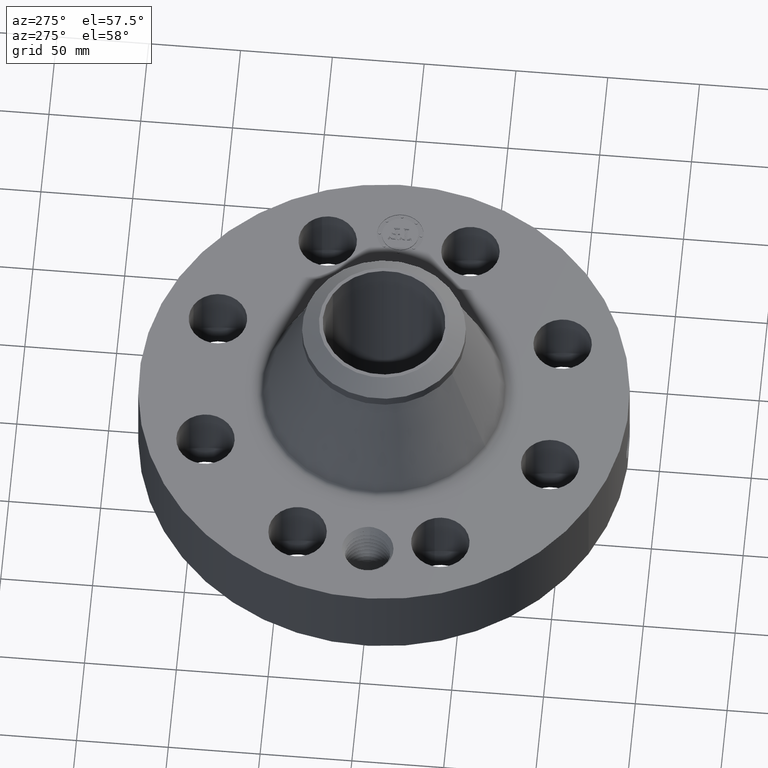
[diagram: clean part render]
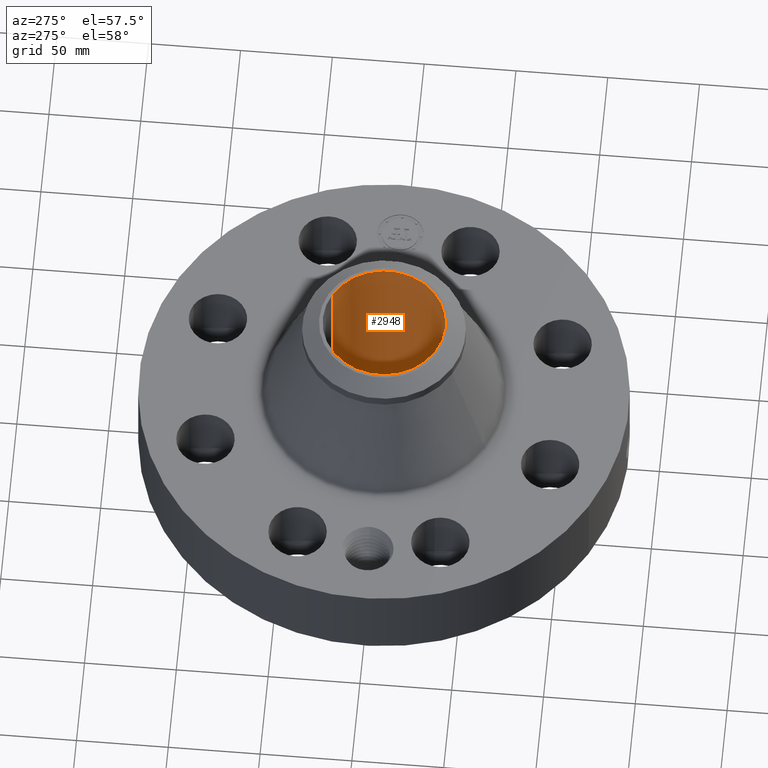
[diagram: same view with one face highlighted and labeled with its STEP entity id]
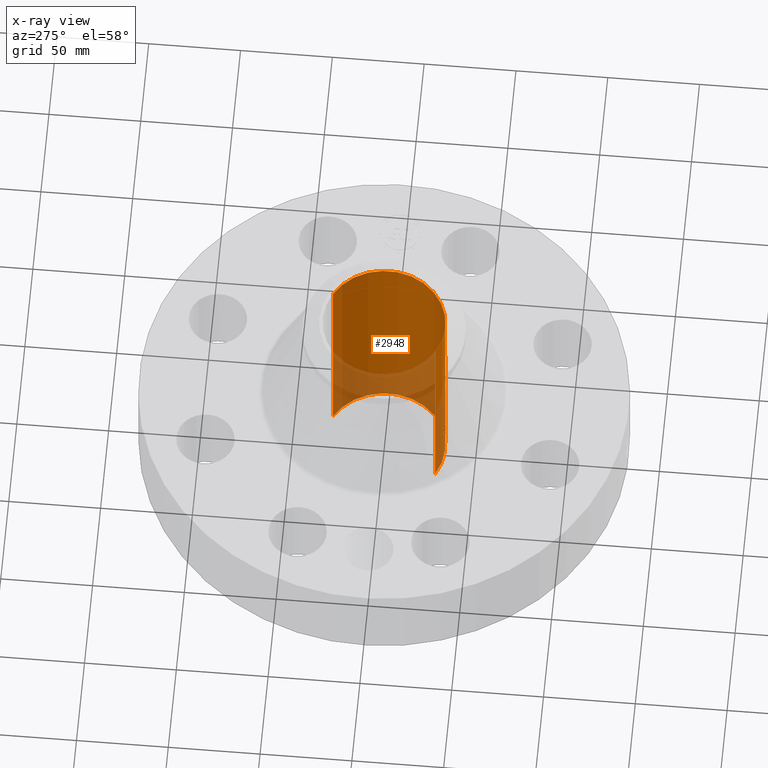
[diagram: x-ray of the same camera — body ghosted, the highlighted face saturated]
A machine part, auxiliary view. The second image highlights one B-rep face of the part: STEP entity #2948.
The next image is the same camera in x-ray: the body ghosted, the highlighted face saturated — about 29% of this face is hidden behind the body in this view.
In plain terms, the highlighted cylindrical surface (partial cylindrical patch) has radius 33.3248 mm, axis along (0, 0, -1).
Its self-contained STEP definition (entity closure, byte-faithful):
#2161=AXIS2_PLACEMENT_3D('Circle Axis2P3D',#2159,#2160,$) ;
#2879=AXIS2_PLACEMENT_3D('Cylinder Axis2P3D',#2876,#2877,#2878) ;
#2883=AXIS2_PLACEMENT_3D('Circle Axis2P3D',#2881,#2882,$) ;
#2159=CARTESIAN_POINT('Axis2P3D Location',(0.,0.,0.)) ;
#2163=CARTESIAN_POINT('Vertex',(0.629006306651,1.1513883212,-5.31508345647E-015)) ;
#2165=CARTESIAN_POINT('Vertex',(-0.629006306651,-1.1513883212,-5.31508345647E-015)) ;
#2876=CARTESIAN_POINT('Axis2P3D Location',(0.,0.,2.43500000001)) ;
#2881=CARTESIAN_POINT('Axis2P3D Location',(0.,0.,4.87000000002)) ;
#2885=CARTESIAN_POINT('Vertex',(0.629006306651,1.1513883212,4.87000000002)) ;
#2887=CARTESIAN_POINT('Vertex',(-0.629006306651,-1.1513883212,4.87000000002)) ;
#2890=CARTESIAN_POINT('Line Origine',(0.629006306651,1.1513883212,2.43500000001)) ;
#2895=CARTESIAN_POINT('Line Origine',(-0.629006306651,-1.1513883212,2.43500000001)) ;
#2907=CARTESIAN_POINT('Control Point',(0.164546730355,-1.30164064685,0.850107711515)) ;
#2908=CARTESIAN_POINT('Control Point',(0.153731230614,-1.30300788682,0.830310072036)) ;
#2909=CARTESIAN_POINT('Control Point',(0.139945864761,-1.30463643262,0.812152952573)) ;
#2910=CARTESIAN_POINT('Control Point',(0.12351536916,-1.30636024152,0.796215921004)) ;
#2911=CARTESIAN_POINT('Control Point',(0.0771782829362,-1.31033077773,0.763216585558)) ;
#2912=CARTESIAN_POINT('Control Point',(0.0211916700941,-1.31250992993,0.74901205539)) ;
#2913=CARTESIAN_POINT('Control Point',(-0.0138299903204,-1.31261786808,0.748335950031)) ;
#2914=CARTESIAN_POINT('Control Point',(-0.0703534484954,-1.31073926324,0.760385868834)) ;
#2915=CARTESIAN_POINT('Control Point',(-0.117943032809,-1.30688680766,0.791605607473)) ;
#2916=CARTESIAN_POINT('Control Point',(-0.134983178851,-1.30517113912,0.806919525061)) ;
#2917=CARTESIAN_POINT('Control Point',(-0.17438489262,-1.30065332861,0.854917831499)) ;
#2918=CARTESIAN_POINT('Control Point',(-0.19222487974,-1.29783605603,0.915904234959)) ;
#2919=CARTESIAN_POINT('Control Point',(-0.193004822572,-1.29770414,0.956780901562)) ;
#2920=CARTESIAN_POINT('Control Point',(-0.183186280201,-1.29928433062,0.995772821361)) ;
#2921=CARTESIAN_POINT('Control Point',(-0.164546730355,-1.30164064685,1.02989228849)) ;
#2922=CARTESIAN_POINT('Vertex',(0.164546730355,-1.30164064685,0.850107711515)) ;
#2924=CARTESIAN_POINT('Vertex',(-0.164546730355,-1.30164064685,1.02989228849)) ;
#2928=CARTESIAN_POINT('Control Point',(-0.164546730355,-1.30164064685,1.02989228849)) ;
#2929=CARTESIAN_POINT('Control Point',(-0.153731230616,-1.30300788682,1.04968992797)) ;
#2930=CARTESIAN_POINT('Control Point',(-0.139945864765,-1.30463643262,1.06784704743)) ;
#2931=CARTESIAN_POINT('Control Point',(-0.123515369152,-1.30636024152,1.08378407901)) ;
#2932=CARTESIAN_POINT('Control Point',(-0.0771782829306,-1.31033077773,1.11678341445)) ;
#2933=CARTESIAN_POINT('Control Point',(-0.0211916700925,-1.31250992993,1.13098794462)) ;
#2934=CARTESIAN_POINT('Control Point',(0.0138299903243,-1.31261786808,1.13166404998)) ;
#2935=CARTESIAN_POINT('Control Point',(0.070353448513,-1.31073926324,1.11961413117)) ;
#2936=CARTESIAN_POINT('Control Point',(0.117943032835,-1.30688680765,1.08839439252)) ;
#2937=CARTESIAN_POINT('Control Point',(0.134983178834,-1.30517113913,1.07308047497)) ;
#2938=CARTESIAN_POINT('Control Point',(0.174384892619,-1.30065332861,1.02508216852)) ;
#2939=CARTESIAN_POINT('Control Point',(0.192224879743,-1.29783605603,0.964095765038)) ;
#2940=CARTESIAN_POINT('Control Point',(0.193004822575,-1.29770414,0.923219098453)) ;
#2941=CARTESIAN_POINT('Control Point',(0.183186280203,-1.29928433062,0.88422717865)) ;
#2942=CARTESIAN_POINT('Control Point',(0.164546730355,-1.30164064685,0.850107711515)) ;
#2160=DIRECTION('Axis2P3D Direction',(0.,0.,-0.0393700787402)) ;
#2877=DIRECTION('Axis2P3D Direction',(0.,0.,-0.0393700787402)) ;
#2878=DIRECTION('Axis2P3D XDirection',(-0.0188750212049,-0.0345504945626,0.)) ;
#2882=DIRECTION('Axis2P3D Direction',(0.,0.,-0.0393700787402)) ;
#2891=DIRECTION('Vector Direction',(0.,0.,-0.0393700787402)) ;
#2896=DIRECTION('Vector Direction',(0.,0.,-0.0393700787402)) ;
#2892=VECTOR('Line Direction',#2891,0.0393700787402) ;
#2897=VECTOR('Line Direction',#2896,0.0393700787402) ;
#2901=ORIENTED_EDGE('',*,*,#2889,.F.) ;
#2902=ORIENTED_EDGE('',*,*,#2894,.T.) ;
#2903=ORIENTED_EDGE('',*,*,#2167,.T.) ;
#2904=ORIENTED_EDGE('',*,*,#2899,.F.) ;
#2945=ORIENTED_EDGE('',*,*,#2926,.F.) ;
#2946=ORIENTED_EDGE('',*,*,#2943,.F.) ;
#2947=FACE_BOUND('',#2944,.T.) ;
#2948=ADVANCED_FACE('PartBody',(#2905,#2947),#2880,.F.) ;
#2906=B_SPLINE_CURVE_WITH_KNOTS('',5,(#2907,#2908,#2909,#2910,#2911,#2912,#2913,#2914,#2915,#2916,#2917,#2918,#2919,#2920,#2921),.UNSPECIFIED.,.F.,.U.,(6,3,3,3,6),(0.,4.05919858274,10.1275934448,14.1901615056,21.1858284772),.UNSPECIFIED.) ;
#2927=B_SPLINE_CURVE_WITH_KNOTS('',5,(#2928,#2929,#2930,#2931,#2932,#2933,#2934,#2935,#2936,#2937,#2938,#2939,#2940,#2941,#2942),.UNSPECIFIED.,.F.,.U.,(6,3,3,3,6),(0.,4.05919858212,10.1275934441,14.1901615074,21.1858284798),.UNSPECIFIED.) ;
#2162=CIRCLE('generated circle',#2161,1.31200000001) ;
#2884=CIRCLE('generated circle',#2883,1.31200000001) ;
#2880=CYLINDRICAL_SURFACE('generated cylinder',#2879,1.31200000001) ;
#2167=EDGE_CURVE('',#2164,#2166,#2162,.T.) ;
#2889=EDGE_CURVE('',#2886,#2888,#2884,.T.) ;
#2894=EDGE_CURVE('',#2886,#2164,#2893,.T.) ;
#2899=EDGE_CURVE('',#2888,#2166,#2898,.T.) ;
#2926=EDGE_CURVE('',#2923,#2925,#2906,.T.) ;
#2943=EDGE_CURVE('',#2925,#2923,#2927,.T.) ;
#2900=EDGE_LOOP('',(#2901,#2902,#2903,#2904)) ;
#2944=EDGE_LOOP('',(#2945,#2946)) ;
#2905=FACE_OUTER_BOUND('',#2900,.T.) ;
#2893=LINE('Line',#2890,#2892) ;
#2898=LINE('Line',#2895,#2897) ;
#2164=VERTEX_POINT('',#2163) ;
#2166=VERTEX_POINT('',#2165) ;
#2886=VERTEX_POINT('',#2885) ;
#2888=VERTEX_POINT('',#2887) ;
#2923=VERTEX_POINT('',#2922) ;
#2925=VERTEX_POINT('',#2924) ;